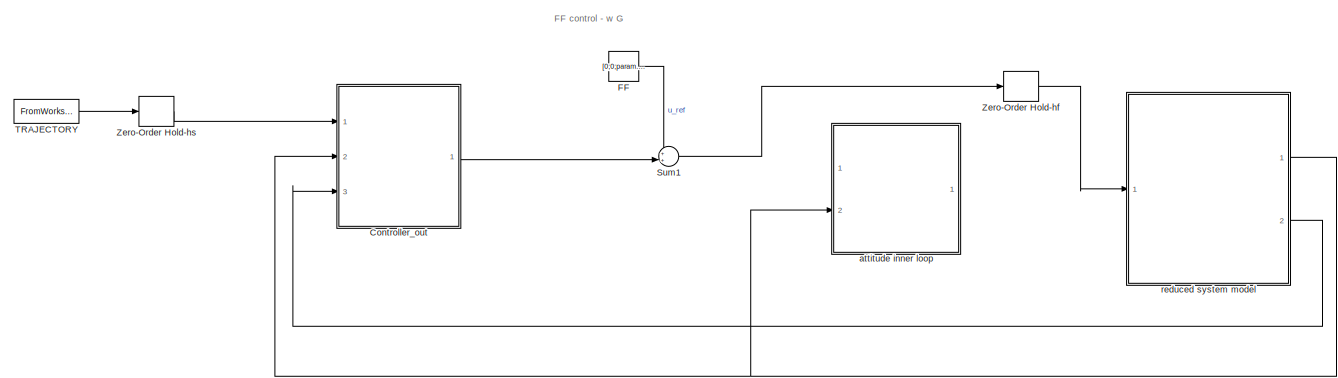
[diagram: root canvas - part 1/2, center side, full height]
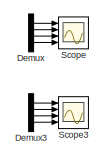
[diagram: root canvas - part 2/2, middle right region]
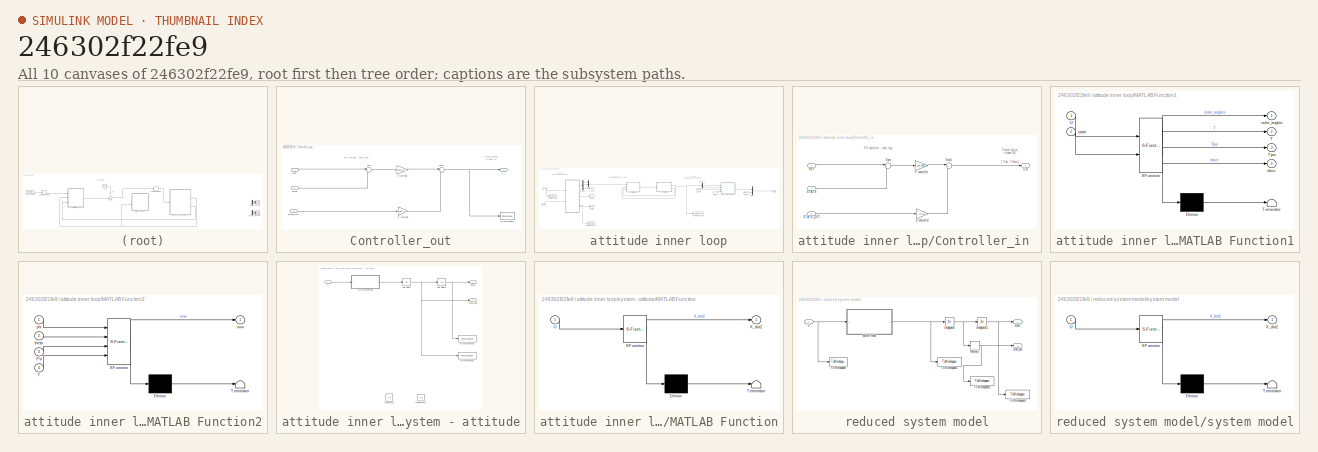
[diagram: thumbnail index - all 10 canvases of the model, root first then tree order]
MODEL slx_246302f22fe9
KIND model
CONFIG AbsTol = 1e-5
CONFIG FixedStep = auto
CONFIG MaxStep = auto
CONFIG MinStep = auto
CONFIG RelTol = 1e-5
CONFIG SampleTimeConstraint = Unconstrained
CONFIG Solver = ode23
CONFIG SolverMode = Auto
CONFIG SolverName = ode23
CONFIG StartTime = 0.0
CONFIG StopTime = Tfin
BLOCK [SubSystem] Controller_out
  Ports = [3, 1]
  RequestExecContextInheritance = off
BLOCK [Gain] Controller_out/D controller
  Gain = K.out.KDm
  Multiplication = Matrix(K*u)
  OutDataTypeStr = Inherit: Inherit via internal rule
  ParamDataTypeStr = Inherit: Inherit via internal rule
  SaturateOnIntegerOverflow = off
BLOCK [Gain] Controller_out/P controller
  Gain = K.out.KPm
  Multiplication = Matrix(K*u)
  OutDataTypeStr = Inherit: Inherit via internal rule
  ParamDataTypeStr = Inherit: Inherit via internal rule
  SaturateOnIntegerOverflow = off
BLOCK [Inport] Controller_out/REF
  IconDisplay = Port number
BLOCK [Inport] Controller_out/STATE
  IconDisplay = Port number
  Port = 2
BLOCK [Inport] Controller_out/STATE_DOT
  IconDisplay = Port number
  Port = 3
BLOCK [Sum] Controller_out/Sum
  IconShape = round
  InputSameDT = off
  Inputs = |+-
  OutDataTypeStr = Inherit: Inherit via internal rule
  Ports = [2, 1]
  SaturateOnIntegerOverflow = off
BLOCK [Sum] Controller_out/Sum2
  IconShape = round
  InputSameDT = off
  Inputs = |+-
  OutDataTypeStr = Inherit: Inherit via internal rule
  Ports = [2, 1]
  SaturateOnIntegerOverflow = off
BLOCK [ToWorkspace] Controller_out/To Workspace
  FixptAsFi = on
  MaxDataPoints = inf
  Ports = [1]
  SampleTime = -1
  Save2DSignal = 3-D array (concatenate along third dimension)
  SaveFormat = Structure With Time
  VariableName = u_woutg
BLOCK [Outport] Controller_out/U_A
  IconDisplay = Port number
BLOCK [Demux] Demux
  Commented = on
  DisplayOption = bar
  Ports = [1, 4]
BLOCK [Demux] Demux3
  Commented = on
  DisplayOption = bar
  Ports = [1, 4]
BLOCK [Constant] FF
  Value = [0;0;param.g*param.m;0]
BLOCK [Scope] Scope
  Commented = on
  Floating = off
  NumInputPorts = 4
  Ports = [4]
  YMax = 5~5~5~5
  YMin = -5~-5~-5~-5
BLOCK [Scope] Scope3
  Commented = on
  Floating = off
  NumInputPorts = 4
  Ports = [4]
  SaveName = ScopeData3
  YMax = 5~5~5~5
  YMin = -5~-5~-5~-5
BLOCK [Sum] Sum1
  IconShape = round
  InputSameDT = off
  Inputs = ++|
  OutDataTypeStr = Inherit: Inherit via internal rule
  Ports = [2, 1]
  SaturateOnIntegerOverflow = off
BLOCK [FromWorkspace] TRAJECTORY
  Interpolate = off
  OutputAfterFinalValue = Setting to zero
  SampleTime = param.hs
  VariableName = traj
  ZeroCross = on
BLOCK [ZeroOrderHold] Zero-Order Hold-hf
  SampleTime = param.hf
BLOCK [ZeroOrderHold] Zero-Order Hold-hs
  SampleTime = param.hs
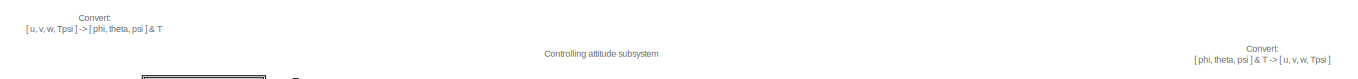
[diagram: attitude inner loop - part 1/3, top center region]
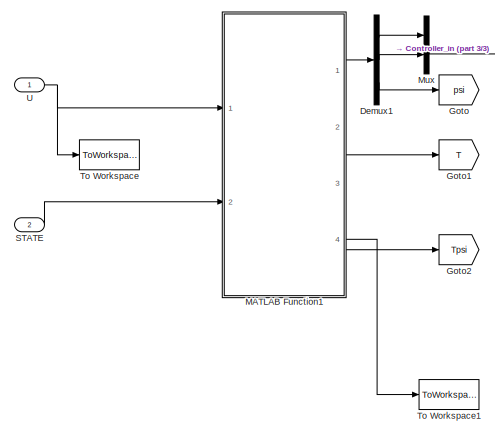
[diagram: attitude inner loop - part 2/3, left side, full height]
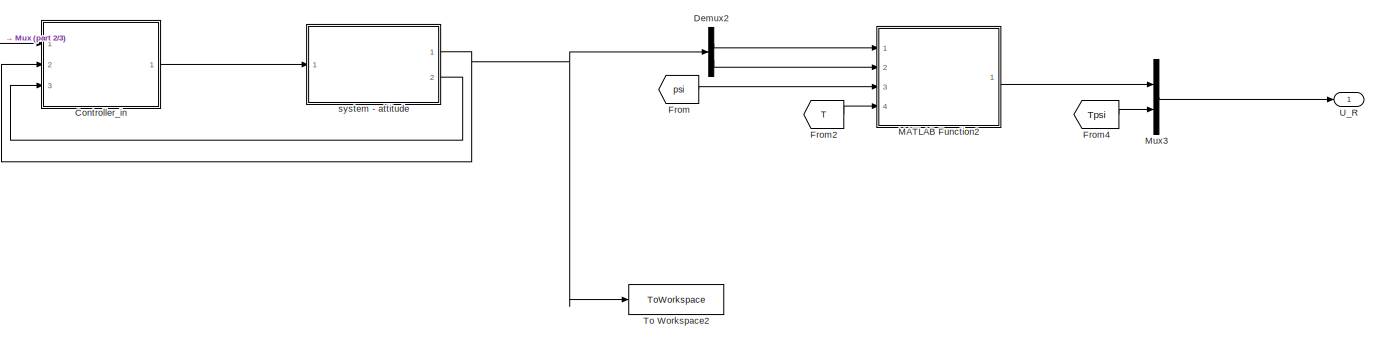
[diagram: attitude inner loop - part 3/3, middle right region]
BLOCK [SubSystem] attitude inner loop
  Commented = on
  Ports = [2, 1]
  RequestExecContextInheritance = off
BLOCK [SubSystem] attitude inner loop/Controller_in 
  Ports = [3, 1]
  RequestExecContextInheritance = off
BLOCK [Gain] attitude inner loop/Controller_in /D controller
  Gain = K.in.KD
  Multiplication = Matrix(K*u)
  OutDataTypeStr = Inherit: Inherit via internal rule
  ParamDataTypeStr = Inherit: Inherit via internal rule
  SaturateOnIntegerOverflow = off
BLOCK [Gain] attitude inner loop/Controller_in /P controller
  Gain = K.in.KP
  Multiplication = Matrix(K*u)
  OutDataTypeStr = Inherit: Inherit via internal rule
  ParamDataTypeStr = Inherit: Inherit via internal rule
  SaturateOnIntegerOverflow = off
BLOCK [Inport] attitude inner loop/Controller_in /REF
  IconDisplay = Port number
BLOCK [Inport] attitude inner loop/Controller_in /STATE
  IconDisplay = Port number
  Port = 2
BLOCK [Inport] attitude inner loop/Controller_in /STATE_DOT
  IconDisplay = Port number
  Port = 3
BLOCK [Sum] attitude inner loop/Controller_in /Sum
  IconShape = round
  InputSameDT = off
  Inputs = |+-
  OutDataTypeStr = Inherit: Inherit via internal rule
  Ports = [2, 1]
  SaturateOnIntegerOverflow = off
BLOCK [Sum] attitude inner loop/Controller_in /Sum1
  IconShape = round
  InputSameDT = off
  Inputs = |+-
  OutDataTypeStr = Inherit: Inherit via internal rule
  Ports = [2, 1]
  SaturateOnIntegerOverflow = off
BLOCK [Outport] attitude inner loop/Controller_in /U_B
  IconDisplay = Port number
BLOCK [Demux] attitude inner loop/Demux1
  DisplayOption = bar
  Outputs = 3
  Ports = [1, 3]
BLOCK [Demux] attitude inner loop/Demux2
  DisplayOption = bar
  Outputs = 2
  Ports = [1, 2]
BLOCK [From] attitude inner loop/From
  GotoTag = psi
BLOCK [From] attitude inner loop/From2
  GotoTag = T
BLOCK [From] attitude inner loop/From4
  GotoTag = Tpsi
BLOCK [Goto] attitude inner loop/Goto
  GotoTag = psi
BLOCK [Goto] attitude inner loop/Goto1
  GotoTag = T
BLOCK [Goto] attitude inner loop/Goto2
  GotoTag = Tpsi
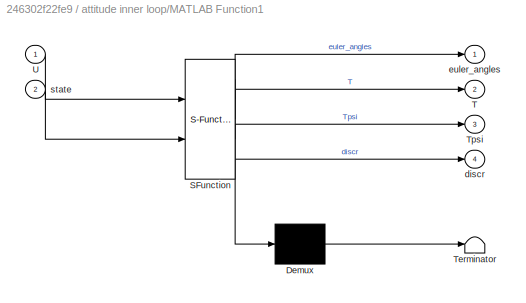
BLOCK [SubSystem] attitude inner loop/MATLAB Function1
  ErrorFcn = Stateflow.Translate.translate
  PermitHierarchicalResolution = ExplicitOnly
  Ports = [2, 4]
  RequestExecContextInheritance = off
  SFBlockType = MATLAB Function
  TreatAsAtomicUnit = on
BLOCK [Demux] attitude inner loop/MATLAB Function1/ Demux 
  Outputs = 1
  Ports = [1, 1]
BLOCK [S-Function] attitude inner loop/MATLAB Function1/ SFunction 
  EnableBusSupport = on
  FunctionName = sf_sfun
  PortCounts = [2 5]
  Ports = [2, 5]
  Tag = Stateflow S-Function trial_main_sys_v1 1
BLOCK [Terminator] attitude inner loop/MATLAB Function1/ Terminator 
BLOCK [Outport] attitude inner loop/MATLAB Function1/T
  IconDisplay = Port number
  Port = 2
BLOCK [Outport] attitude inner loop/MATLAB Function1/Tpsi
  IconDisplay = Port number
  Port = 3
BLOCK [Inport] attitude inner loop/MATLAB Function1/U
  IconDisplay = Port number
BLOCK [Outport] attitude inner loop/MATLAB Function1/discr
  IconDisplay = Port number
  Port = 4
BLOCK [Outport] attitude inner loop/MATLAB Function1/euler_angles
  IconDisplay = Port number
BLOCK [Inport] attitude inner loop/MATLAB Function1/state
  IconDisplay = Port number
  Port = 2
BLOCK [SubSystem] attitude inner loop/MATLAB Function2
  ErrorFcn = Stateflow.Translate.translate
  PermitHierarchicalResolution = ExplicitOnly
  Ports = [4, 1]
  RequestExecContextInheritance = off
  SFBlockType = MATLAB Function
  TreatAsAtomicUnit = on
BLOCK [Demux] attitude inner loop/MATLAB Function2/ Demux 
  Outputs = 1
  Ports = [1, 1]
BLOCK [S-Function] attitude inner loop/MATLAB Function2/ SFunction 
  EnableBusSupport = on
  FunctionName = sf_sfun
  PortCounts = [4 2]
  Ports = [4, 2]
  Tag = Stateflow S-Function trial_main_sys_v1 3
BLOCK [Terminator] attitude inner loop/MATLAB Function2/ Terminator 
BLOCK [Inport] attitude inner loop/MATLAB Function2/Psi
  IconDisplay = Port number
  Port = 3
BLOCK [Inport] attitude inner loop/MATLAB Function2/T
  IconDisplay = Port number
  Port = 4
BLOCK [Inport] attitude inner loop/MATLAB Function2/phi
  IconDisplay = Port number
BLOCK [Inport] attitude inner loop/MATLAB Function2/theta
  IconDisplay = Port number
  Port = 2
BLOCK [Outport] attitude inner loop/MATLAB Function2/uvw
  IconDisplay = Port number
BLOCK [Mux] attitude inner loop/Mux
  DisplayOption = bar
  Inputs = 2
  Ports = [2, 1]
BLOCK [Mux] attitude inner loop/Mux3
  DisplayOption = bar
  Inputs = 2
  Ports = [2, 1]
BLOCK [Inport] attitude inner loop/STATE
  IconDisplay = Port number
  Port = 2
BLOCK [ToWorkspace] attitude inner loop/To Workspace
  FixptAsFi = on
  MaxDataPoints = inf
  Ports = [1]
  SampleTime = -1
  Save2DSignal = 3-D array (concatenate along third dimension)
  SaveFormat = Structure With Time
  VariableName = u_inn
BLOCK [ToWorkspace] attitude inner loop/To Workspace1
  FixptAsFi = on
  MaxDataPoints = inf
  Ports = [1]
  SampleTime = -1
  Save2DSignal = 3-D array (concatenate along third dimension)
  SaveFormat = Structure With Time
  VariableName = casee
BLOCK [ToWorkspace] attitude inner loop/To Workspace2
  FixptAsFi = on
  MaxDataPoints = inf
  Ports = [1]
  SampleTime = -1
  Save2DSignal = 3-D array (concatenate along third dimension)
  SaveFormat = Structure With Time
  VariableName = casee_angles
BLOCK [Inport] attitude inner loop/U
  IconDisplay = Port number
BLOCK [Outport] attitude inner loop/U_R
  IconDisplay = Port number
BLOCK [SubSystem] attitude inner loop/system - attitude
  Ports = [1, 2]
  RequestExecContextInheritance = off
BLOCK [Integrator] attitude inner loop/system - attitude/Integrator
  Commented = on
  InitialCondition = [1e-7;1e-7]
  Ports = [1, 1]
  ZeroCross = off
BLOCK [Integrator] attitude inner loop/system - attitude/Integrator1
  Commented = on
  InitialCondition = init.in
  Ports = [1, 1]
BLOCK [SubSystem] attitude inner loop/system - attitude/MATLAB Function
  ErrorFcn = Stateflow.Translate.translate
  PermitHierarchicalResolution = ExplicitOnly
  Ports = [1, 1]
  RequestExecContextInheritance = off
  SFBlockType = MATLAB Function
  TreatAsAtomicUnit = on
BLOCK [Demux] attitude inner loop/system - attitude/MATLAB Function/ Demux 
  Outputs = 1
  Ports = [1, 1]
BLOCK [S-Function] attitude inner loop/system - attitude/MATLAB Function/ SFunction 
  EnableBusSupport = on
  FunctionName = sf_sfun
  PortCounts = [1 2]
  Ports = [1, 2]
  Tag = Stateflow S-Function trial_main_sys_v1 5
BLOCK [Terminator] attitude inner loop/system - attitude/MATLAB Function/ Terminator 
BLOCK [Inport] attitude inner loop/system - attitude/MATLAB Function/U
  IconDisplay = Port number
BLOCK [Outport] attitude inner loop/system - attitude/MATLAB Function/X_dot2
  IconDisplay = Port number
BLOCK [ToWorkspace] attitude inner loop/system - attitude/To Workspace2
  FixptAsFi = on
  MaxDataPoints = inf
  Ports = [1]
  SampleTime = -1
  Save2DSignal = 3-D array (concatenate along third dimension)
  SaveFormat = Structure With Time
  VariableName = in_state_dot
BLOCK [ToWorkspace] attitude inner loop/system - attitude/To Workspace3
  FixptAsFi = on
  MaxDataPoints = inf
  Ports = [1]
  SampleTime = -1
  Save2DSignal = 3-D array (concatenate along third dimension)
  SaveFormat = Structure With Time
  VariableName = in_state
BLOCK [Inport] attitude inner loop/system - attitude/U
  IconDisplay = Port number
BLOCK [UnitDelay] attitude inner loop/system - attitude/Unit Delay
  InputProcessing = Elements as channels (sample based)
  SampleTime = param.hf
BLOCK [UnitDelay] attitude inner loop/system - attitude/Unit Delay1
  InitialCondition = init.in
  InputProcessing = Elements as channels (sample based)
  SampleTime = param.hf
BLOCK [Outport] attitude inner loop/system - attitude/state
  IconDisplay = Port number
BLOCK [Outport] attitude inner loop/system - attitude/state_dot
  IconDisplay = Port number
  Port = 2
BLOCK [SubSystem] reduced system model
  Ports = [1, 2]
  RequestExecContextInheritance = off
BLOCK [Integrator] reduced system model/Integrator
  InitialCondition = init.out_dot
  Ports = [1, 1]
BLOCK [Integrator] reduced system model/Integrator1
  InitialCondition = init.out
  Ports = [1, 1]
BLOCK [Memory] reduced system model/Memory
BLOCK [ToWorkspace] reduced system model/To Workspace
  FixptAsFi = on
  MaxDataPoints = inf
  Ports = [1]
  SampleTime = -1
  Save2DSignal = 3-D array (concatenate along third dimension)
  SaveFormat = Structure With Time
  VariableName = out_u
BLOCK [ToWorkspace] reduced system model/To Workspace1
  FixptAsFi = on
  MaxDataPoints = inf
  Ports = [1]
  SampleTime = -1
  Save2DSignal = 3-D array (concatenate along third dimension)
  SaveFormat = Structure With Time
  VariableName = out_state_2dot
BLOCK [ToWorkspace] reduced system model/To Workspace2
  FixptAsFi = on
  MaxDataPoints = inf
  Ports = [1]
  SampleTime = -1
  Save2DSignal = 3-D array (concatenate along third dimension)
  SaveFormat = Structure With Time
  VariableName = out_state_dot
BLOCK [ToWorkspace] reduced system model/To Workspace3
  FixptAsFi = on
  MaxDataPoints = inf
  Ports = [1]
  SampleTime = -1
  Save2DSignal = 3-D array (concatenate along third dimension)
  SaveFormat = Structure With Time
  VariableName = out_state
BLOCK [Inport] reduced system model/U
  IconDisplay = Port number
BLOCK [Outport] reduced system model/state
  IconDisplay = Port number
BLOCK [Outport] reduced system model/state_dot
  IconDisplay = Port number
  Port = 2
BLOCK [SubSystem] reduced system model/system model
  ErrorFcn = Stateflow.Translate.translate
  PermitHierarchicalResolution = ExplicitOnly
  Ports = [1, 1]
  RequestExecContextInheritance = off
  SFBlockType = MATLAB Function
  TreatAsAtomicUnit = on
BLOCK [Demux] reduced system model/system model/ Demux 
  Outputs = 1
  Ports = [1, 1]
BLOCK [S-Function] reduced system model/system model/ SFunction 
  EnableBusSupport = on
  FunctionName = sf_sfun
  PortCounts = [1 2]
  Ports = [1, 2]
  Tag = Stateflow S-Function trial_main_sys_v1 2
BLOCK [Terminator] reduced system model/system model/ Terminator 
BLOCK [Inport] reduced system model/system model/U
  IconDisplay = Port number
BLOCK [Outport] reduced system model/system model/X_dot2
  IconDisplay = Port number
ANNOTATION (root): FF control - w G
ANNOTATION Controller_out: Control action in base {A} [ u, v, w, Tpsi ]
ANNOTATION Controller_out: PD controller - outer loop
ANNOTATION attitude inner loop: Controlling attitude subsystem
ANNOTATION attitude inner loop: Convert: [ phi, theta, psi ] & T -> [ u, v, w, Tpsi ]
ANNOTATION attitude inner loop: Convert: [ u, v, w, Tpsi ] -> [ phi, theta, psi ] & T
ANNOTATION attitude inner loop/Controller_in : Control action in base {B} [ Tphi, Ttheta ]
ANNOTATION attitude inner loop/Controller_in : PD controller - inner loop
LINE Controller_out/D controller:1 -> Controller_out/Sum2:2
LINE Controller_out/P controller:1 -> Controller_out/Sum2:1
LINE Controller_out/REF:1 -> Controller_out/Sum:1
LINE Controller_out/STATE:1 -> Controller_out/Sum:2
LINE Controller_out/STATE_DOT:1 -> Controller_out/D controller:1
NET Controller_out/Sum2:1 -> Controller_out/To Workspace:1, Controller_out/U_A:1
LINE Controller_out/Sum:1 -> Controller_out/P controller:1
LINE Controller_out:1 -> Sum1:2
LINE Demux3:1 -> Scope3:1
LINE Demux3:2 -> Scope3:2
LINE Demux3:3 -> Scope3:3
LINE Demux3:4 -> Scope3:4
LINE Demux:1 -> Scope:1
LINE Demux:2 -> Scope:2
LINE Demux:3 -> Scope:3
LINE Demux:4 -> Scope:4
LINE FF:1 -> Sum1:1
LINE Sum1:1 -> Zero-Order Hold-hf:1
LINE TRAJECTORY:1 -> Zero-Order Hold-hs:1
LINE Zero-Order Hold-hf:1 -> reduced system model:1
LINE Zero-Order Hold-hs:1 -> Controller_out:1
LINE attitude inner loop/Controller_in /D controller:1 -> attitude inner loop/Controller_in /Sum1:2
LINE attitude inner loop/Controller_in /P controller:1 -> attitude inner loop/Controller_in /Sum1:1
LINE attitude inner loop/Controller_in /REF:1 -> attitude inner loop/Controller_in /Sum:1
LINE attitude inner loop/Controller_in /STATE:1 -> attitude inner loop/Controller_in /Sum:2
LINE attitude inner loop/Controller_in /STATE_DOT:1 -> attitude inner loop/Controller_in /D controller:1
LINE attitude inner loop/Controller_in /Sum1:1 -> attitude inner loop/Controller_in /U_B:1
LINE attitude inner loop/Controller_in /Sum:1 -> attitude inner loop/Controller_in /P controller:1
LINE attitude inner loop/Controller_in :1 -> attitude inner loop/system - attitude:1
LINE attitude inner loop/Demux1:1 -> attitude inner loop/Mux:1
LINE attitude inner loop/Demux1:2 -> attitude inner loop/Mux:2
LINE attitude inner loop/Demux1:3 -> attitude inner loop/Goto:1
LINE attitude inner loop/Demux2:1 -> attitude inner loop/MATLAB Function2:1
LINE attitude inner loop/Demux2:2 -> attitude inner loop/MATLAB Function2:2
LINE attitude inner loop/From2:1 -> attitude inner loop/MATLAB Function2:4
LINE attitude inner loop/From4:1 -> attitude inner loop/Mux3:2
LINE attitude inner loop/From:1 -> attitude inner loop/MATLAB Function2:3
LINE attitude inner loop/MATLAB Function1:1 -> attitude inner loop/Demux1:1
LINE attitude inner loop/MATLAB Function1:2 -> attitude inner loop/Goto1:1
LINE attitude inner loop/MATLAB Function1:3 -> attitude inner loop/Goto2:1
LINE attitude inner loop/MATLAB Function1:4 -> attitude inner loop/To Workspace1:1
LINE attitude inner loop/MATLAB Function2:1 -> attitude inner loop/Mux3:1
LINE attitude inner loop/Mux3:1 -> attitude inner loop/U_R:1
LINE attitude inner loop/Mux:1 -> attitude inner loop/Controller_in :1
LINE attitude inner loop/STATE:1 -> attitude inner loop/MATLAB Function1:2
NET attitude inner loop/U:1 -> attitude inner loop/MATLAB Function1:1, attitude inner loop/To Workspace:1
LINE attitude inner loop/system - attitude/MATLAB Function:1 -> attitude inner loop/system - attitude/Unit Delay:1
LINE attitude inner loop/system - attitude/U:1 -> attitude inner loop/system - attitude/MATLAB Function:1
NET attitude inner loop/system - attitude/Unit Delay1:1 -> attitude inner loop/system - attitude/To Workspace3:1, attitude inner loop/system - attitude/state:1
NET attitude inner loop/system - attitude/Unit Delay:1 -> attitude inner loop/system - attitude/To Workspace2:1, attitude inner loop/system - attitude/Unit Delay1:1, attitude inner loop/system - attitude/state_dot:1
NET attitude inner loop/system - attitude:1 -> attitude inner loop/Controller_in :2, attitude inner loop/Demux2:1, attitude inner loop/To Workspace2:1
LINE attitude inner loop/system - attitude:2 -> attitude inner loop/Controller_in :3
NET reduced system model/Integrator1:1 -> reduced system model/To Workspace3:1, reduced system model/state:1
NET reduced system model/Integrator:1 -> reduced system model/Integrator1:1, reduced system model/Memory:1
NET reduced system model/Memory:1 -> reduced system model/To Workspace2:1, reduced system model/state_dot:1
NET reduced system model/U:1 -> reduced system model/To Workspace:1, reduced system model/system model:1
NET reduced system model/system model:1 -> reduced system model/Integrator:1, reduced system model/To Workspace1:1
NET reduced system model:1 -> Controller_out:2, attitude inner loop:2
LINE reduced system model:2 -> Controller_out:3
note: NET lines group one-source signal fan-out (src -> all destinations, sorted); 1:1 wires keep LINE
CHART attitude inner loop/MATLAB Function1 states=1 transitions=1
  STATE_LABEL 'eML_blk_kernel()'
  STATE_LABEL 'SCRIPT:\nfunction [euler_angles, T, Tpsi, discr] = fcn1(U, state)\n\n% Mathematical derivation of formulas in XXXX\n\n% Inputs\n    u_abs = U(1);   v_abs = U(2);   w_abs = U(3);\n    Tpsi = U(4);\n    psi = state(4);\n    \n% Torque\nT = sqrt( u_abs^2 + v_abs^2 + w_abs^2 );\n%9.80665\n% normalization of thrust components\nu = u_abs/T;\nv = v_abs/T;\nw = w_abs/T;\n\n% Euler angles\n\n    % Considering w =! 0 (always t...<+2266ch>'
CHART reduced system model/system model states=1 transitions=1
  STATE_LABEL 'eML_blk_kernel()'
  STATE_LABEL "SCRIPT:\nfunction X_dot2 = syst(U)\n% Simplified model of quadcopter\n    % Inputs: F, Tpsi\n    %   ·F: vector of forces in base{A}. projection of Thrust {B} in each\n    %     direction of {A}\n    %       units: [N]\n    %   ·Tpsi: Torque applied around Euler's angle PSI\n    %       units: [Nm]   \n    %\n    % Outputs: X_dot2: second derivative of the state\n    %       units: ['state'/t^2]\n    %\n    % ...<+303ch>"
CHART attitude inner loop/MATLAB Function2 states=1 transitions=1
  STATE_LABEL 'eML_blk_kernel()'
  STATE_LABEL 'SCRIPT:\nfunction uvw  = fnc2(phi, theta, Psi, T)\n\n% call RT2uvw\n\n% inputs\n%     phi   = euler(1);\n%     theta = euler(2);\n%     Psi   = euler(3);\n    \n% rotation matrix\n    R = [cos(theta)*cos(Psi),  sin(phi)*sin(theta)*cos(Psi)-cos(phi)*sin(Psi),  cos(phi)*sin(theta)*cos(Psi)+sin(phi)*sin(Psi);\n         cos(theta)*sin(Psi),  sin(phi)*sin(theta)*sin(Psi)+cos(phi)*sin(Psi),  cos(phi)*sin(theta)*sin...<+261ch>'
CHART attitude inner loop/system - attitude/MATLAB Function states=1 transitions=1
  STATE_LABEL 'eML_blk_kernel()'
  STATE_LABEL 'SCRIPT:\nfunction X_dot2   = sys_in ( U )\n%#codegen\n% parameters\n    Ix = 0.002237568100000;   \n    Iy = 0.002985236000000;\n\nX_dot2 = [ 0; 0];\nX_dot2(1) = U(1) / Ix;\nX_dot2(2) = U(2) / Iy;\n\n\n\n'
